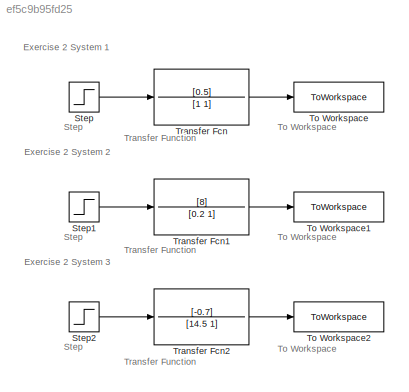
MODEL slx_ef5c9b95fd25
KIND model
CONFIG AbsTol = auto
CONFIG EnableMultiTasking = off
CONFIG FixedStep = auto
CONFIG MaxStep = auto
CONFIG MinStep = auto
CONFIG RelTol = 1e-3
CONFIG SampleTimeConstraint = Unconstrained
CONFIG SolverName = VariableStepAuto
CONFIG StartTime = 0.0
CONFIG StopTime = 100
BLOCK [Step] Step
  SampleTime = 0
BLOCK [Step] Step1
  SampleTime = 0
BLOCK [Step] Step2
  SampleTime = 0
BLOCK [ToWorkspace] To Workspace
  FixptAsFi = on
  MaxDataPoints = inf
  SampleTime = -1
  VariableName = case1
BLOCK [ToWorkspace] To Workspace1
  FixptAsFi = on
  MaxDataPoints = inf
  SampleTime = -1
  VariableName = case2
BLOCK [ToWorkspace] To Workspace2
  FixptAsFi = on
  MaxDataPoints = inf
  SampleTime = -1
  VariableName = case3
BLOCK [TransferFcn] Transfer Fcn
  Denominator = [1 1]
  Numerator = [0.5]
BLOCK [TransferFcn] Transfer Fcn1
  Denominator = [0.2 1]
  Numerator = [8]
BLOCK [TransferFcn] Transfer Fcn2
  Denominator = [14.5 1]
  Numerator = [-0.7]
ANNOTATION (root): Exercise 2 System 1
ANNOTATION (root): Exercise 2 System 2
ANNOTATION (root): Exercise 2 System 3
ANNOTATION (root): Step
ANNOTATION (root): To Workspace
ANNOTATION (root): Transfer Function
LINE Step1:1 -> Transfer Fcn1:1
LINE Step2:1 -> Transfer Fcn2:1
LINE Step:1 -> Transfer Fcn:1
LINE Transfer Fcn1:1 -> To Workspace1:1
LINE Transfer Fcn2:1 -> To Workspace2:1
LINE Transfer Fcn:1 -> To Workspace:1
